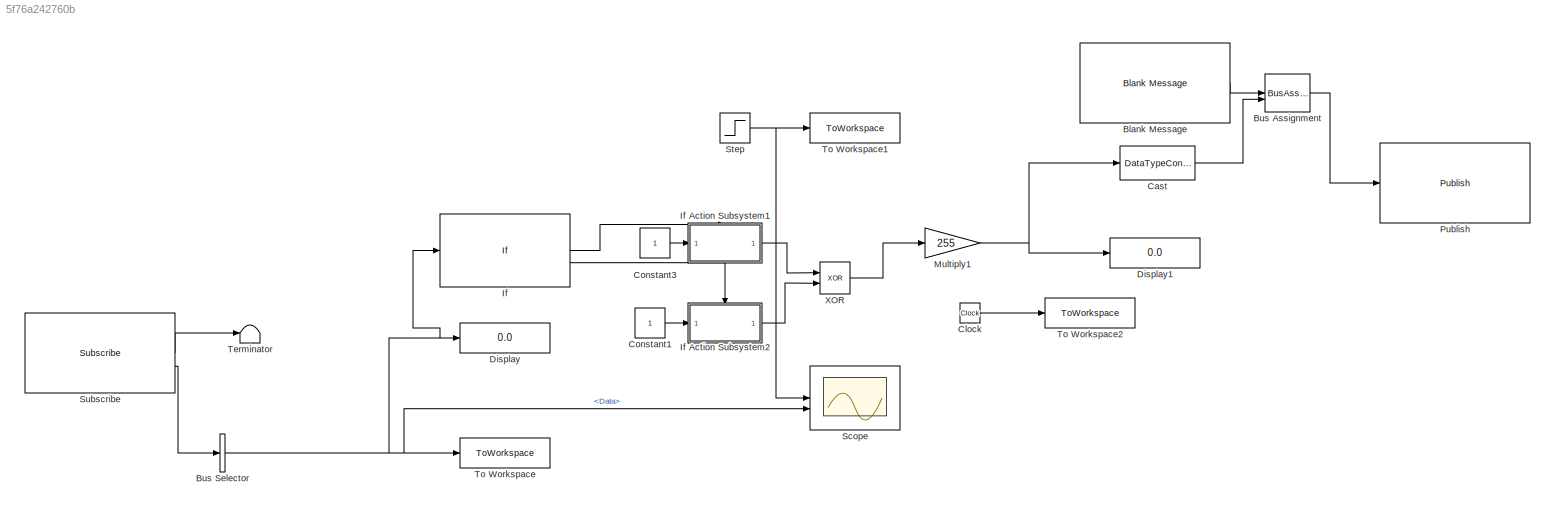
MODEL slx_5f76a242760b
KIND model
CONFIG AbsTol = auto
CONFIG EnableMultiTasking = off
CONFIG FixedStep = auto
CONFIG MaxStep = auto
CONFIG MinStep = auto
CONFIG RelTol = 1e-3
CONFIG SampleTimeConstraint = Unconstrained
CONFIG SolverName = VariableStepAuto
CONFIG StartTime = 0.0
CONFIG StopTime = inf
BLOCK [Reference] Blank Message  REF=robotlib/Blank Message
  LibrarySourceBlock = roslib/ROS/Blank Message
  SourceBlock = robotlib/Blank Message
  SourceType = ROS Blank Message
BLOCK [BusAssignment] Bus Assignment
  AssignedSignals = Data
BLOCK [BusSelector] Bus Selector
  OutputSignals = Data
BLOCK [DataTypeConversion] Cast
  OutDataTypeStr = int16
  RndMeth = Floor
  SaturateOnIntegerOverflow = off
BLOCK [Clock] Clock
BLOCK [Constant] Constant1
BLOCK [Constant] Constant3
BLOCK [Display] Display
  Decimation = 1
BLOCK [Display] Display1
  Decimation = 1
BLOCK [If] If
  IfExpression = u1 < 6
  ZeroCross = off
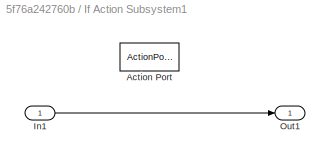
BLOCK [SubSystem] If Action Subsystem1
  TreatAsAtomicUnit = on
BLOCK [ActionPort] If Action Subsystem1/Action Port
  ActionPortLabel = if(u1 < 6)
BLOCK [Inport] If Action Subsystem1/In1
BLOCK [Outport] If Action Subsystem1/Out1
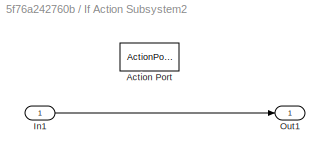
BLOCK [SubSystem] If Action Subsystem2
  TreatAsAtomicUnit = on
BLOCK [ActionPort] If Action Subsystem2/Action Port
  ActionPortLabel = else
BLOCK [Inport] If Action Subsystem2/In1
BLOCK [Outport] If Action Subsystem2/Out1
BLOCK [Gain] Multiply1
  Gain = 255
BLOCK [Reference] Publish  REF=robotlib/Publish
  LibrarySourceBlock = roslib/ROS/Publish
  SourceBlock = robotlib/Publish
  SourceType = ROS Publish
BLOCK [Scope] Scope
  Floating = off
  NumInputPorts = 2
  ScopeSpecificationString = Simulink.scopes.TimeScopeBlockCfg('CurrentConfiguration', extmgr.ConfigurationSet(extmgr.Configuration('Core','General UI',true),extmgr.Configuration('Core','Source UI',true),extmgr.Configuration('Sources','WiredSimulink',true),extmgr.Configuration('Visuals','Time Domain',true,'SerializedDisplays',{struct('MinYLimReal','6.41925','MaxYLimReal','6.44897','YLabelReal','','MinYLimMag','6.41925','MaxYL...<+1495ch>
BLOCK [Step] Step
  After = 6.446
  SampleTime = 0
  Time = 0
BLOCK [Reference] Subscribe  REF=robotlib/Subscribe
  LibrarySourceBlock = roslib/ROS/Subscribe
  SourceBlock = robotlib/Subscribe
  SourceType = ROS Subscribe
BLOCK [Terminator] Terminator
BLOCK [ToWorkspace] To Workspace
  FixptAsFi = on
  MaxDataPoints = inf
  SampleTime = 0.01
  SaveFormat = Timeseries
  VariableName = Pos
BLOCK [ToWorkspace] To Workspace1
  FixptAsFi = on
  MaxDataPoints = inf
  SampleTime = 0.01
  SaveFormat = Timeseries
  VariableName = Ref
BLOCK [ToWorkspace] To Workspace2
  FixptAsFi = on
  MaxDataPoints = inf
  SampleTime = 0.01
  SaveFormat = Timeseries
  VariableName = t
BLOCK [Logic] XOR
  AllPortsSameDT = off
  IconShape = distinctive
  Operator = XOR
  OutDataTypeStr = boolean
LINE Blank Message:1 -> Bus Assignment:1
LINE Bus Assignment:1 -> Publish:1
NET Bus Selector:1 -> Display:1, If:1, Scope:2, To Workspace:1
LINE Cast:1 -> Bus Assignment:2
LINE Clock:1 -> To Workspace2:1
LINE Constant1:1 -> If Action Subsystem2:1
LINE Constant3:1 -> If Action Subsystem1:1
LINE If Action Subsystem1/In1:1 -> If Action Subsystem1/Out1:1
LINE If Action Subsystem1:1 -> XOR:1
LINE If Action Subsystem2/In1:1 -> If Action Subsystem2/Out1:1
LINE If Action Subsystem2:1 -> XOR:2
LINE If:1 -> If Action Subsystem1:ifaction
LINE If:2 -> If Action Subsystem2:ifaction
NET Multiply1:1 -> Cast:1, Display1:1
NET Step:1 -> Scope:1, To Workspace1:1
LINE Subscribe:1 -> Terminator:1
LINE Subscribe:2 -> Bus Selector:1
LINE XOR:1 -> Multiply1:1
note: NET lines group one-source signal fan-out (src -> all destinations, sorted); 1:1 wires keep LINE
